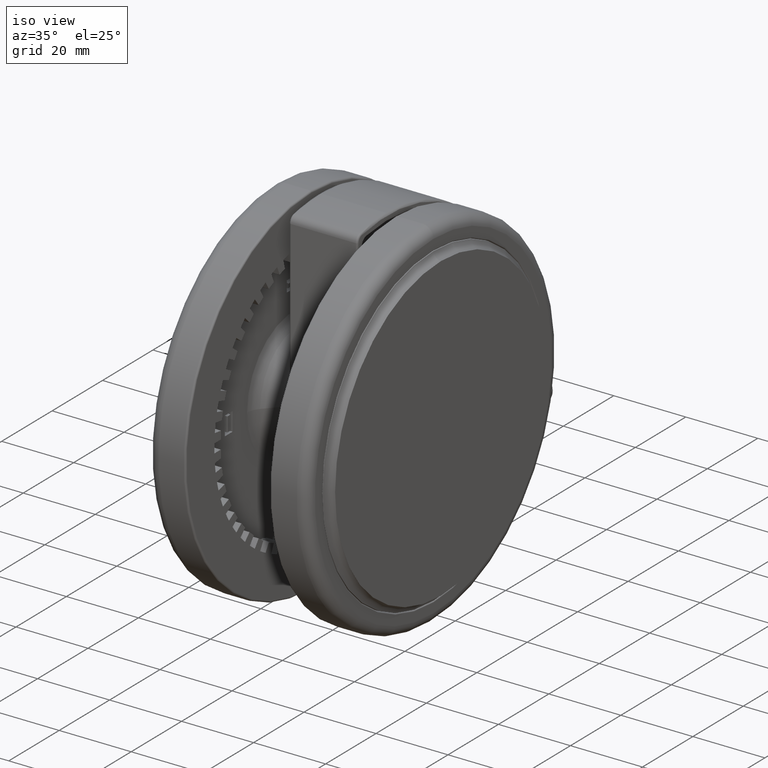
[diagram: clean part render]
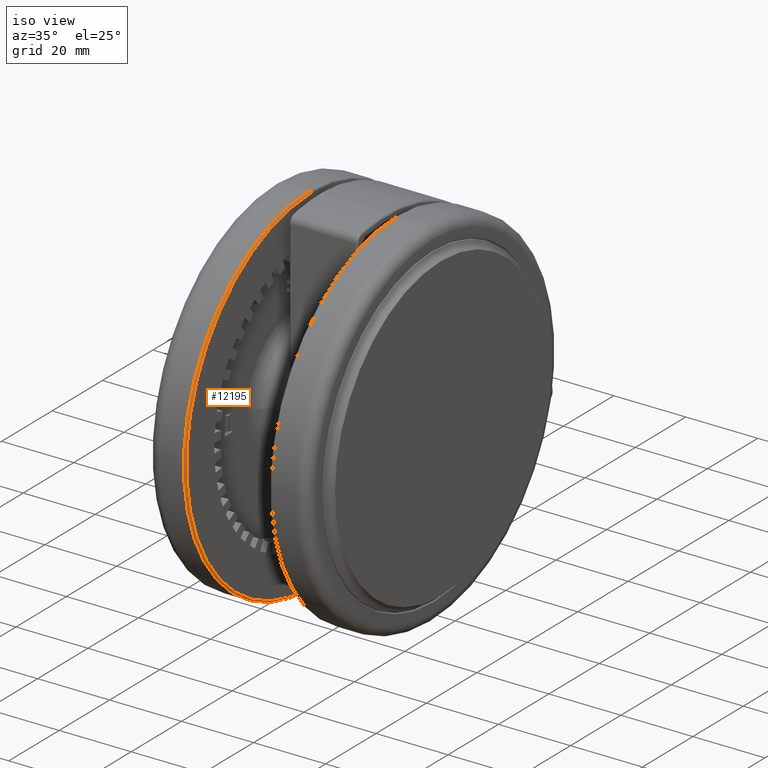
[diagram: same view with one face highlighted and labeled with its STEP entity id]
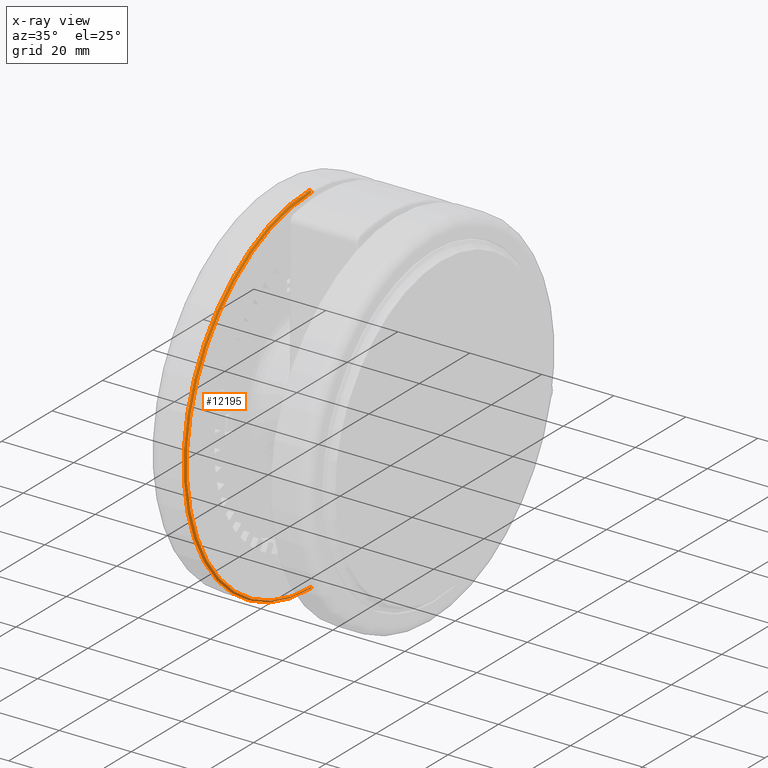
[diagram: x-ray of the same camera — body ghosted, the highlighted face saturated]
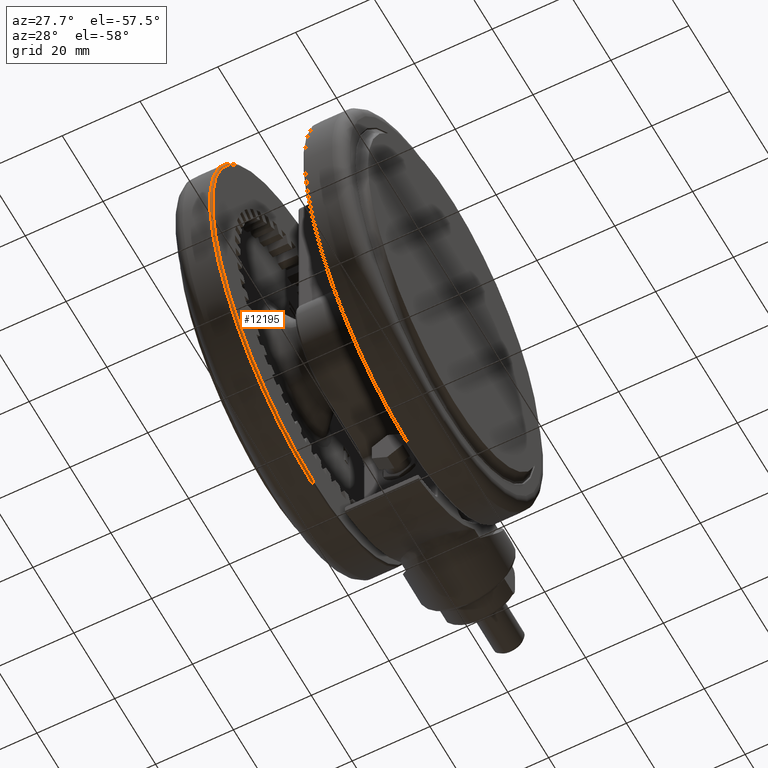
[diagram: same view with one face highlighted and labeled with its STEP entity id]
A machine part, iso view. The second image highlights one B-rep face of the part: STEP entity #12195.
The next image is the same camera in x-ray: the body ghosted, the highlighted face saturated — about 1% of this face is hidden behind the body in this view.
A second angle (auxiliary view) of the same face is appended — the face is thin or edge-on in the first view.
In plain terms, the highlighted toroidal blend (fillet) surface has major radius 49.5 mm and minor (blend) radius 0.5 mm.
Its self-contained STEP definition (entity closure, byte-faithful):
#160 = DIRECTION ( 'NONE',  ( -1.000000000000000000, -4.413456915335259800E-017, -3.081487911019580800E-033 ) ) ;
#1043 = CARTESIAN_POINT ( 'NONE',  ( -50.00000000000002800, -3.089419840734682000E-015, -36.50000000000007800 ) ) ;
#1303 = EDGE_CURVE ( 'NONE', #3012, #26228, #5772, .T. ) ;
#2032 = DIRECTION ( 'NONE',  ( 0.0000000000000000000, 8.826913830670481300E-017, -1.000000000000000000 ) ) ;
#2716 = DIRECTION ( 'NONE',  ( -1.665992490680879200E-016, 1.000000000000000000, 8.826913830670518300E-017 ) ) ;
#3012 = VERTEX_POINT ( 'NONE', #32122 ) ;
#3301 = CARTESIAN_POINT ( 'NONE',  ( 49.99999999999997200, 7.756213054410816500E-015, -36.50000000000007800 ) ) ;
#4066 = CARTESIAN_POINT ( 'NONE',  ( -2.775557561562891400E-014, -8.826913830670517600E-016, -36.50000000000007800 ) ) ;
#5454 = DIRECTION ( 'NONE',  ( 8.142324776845440500E-034, -8.826913830670518300E-017, 1.000000000000000000 ) ) ;
#5746 = FACE_OUTER_BOUND ( 'NONE', #29171, .T. ) ;
#5772 = CIRCLE ( 'NONE', #12741, 49.50000000000000000 ) ;
#5866 = CIRCLE ( 'NONE', #27780, 0.5000000000000004400 ) ;
#6572 = DIRECTION ( 'NONE',  ( -1.000000000000000000, -4.413456915335259800E-017, 0.0000000000000000000 ) ) ;
#9551 = EDGE_CURVE ( 'NONE', #26228, #21359, #5866, .T. ) ;
#9973 = CARTESIAN_POINT ( 'NONE',  ( -2.775557561562891400E-014, -8.826913830670517600E-016, -36.50000000000007800 ) ) ;
#11523 = ORIENTED_EDGE ( 'NONE', *, *, #29039, .F. ) ;
#11632 = TOROIDAL_SURFACE ( 'NONE', #27618, 49.50000000000000000, 0.5000000000000000000 ) ;
#12195 = ADVANCED_FACE ( 'NONE', ( #5746 ), #11632, .T. ) ;
#12224 = ORIENTED_EDGE ( 'NONE', *, *, #28279, .T. ) ;
#12741 = AXIS2_PLACEMENT_3D ( 'NONE', #20430, #5454, #21693 ) ;
#14058 = AXIS2_PLACEMENT_3D ( 'NONE', #4066, #21544, #6572 ) ;
#14532 = CIRCLE ( 'NONE', #14058, 50.00000000000000000 ) ;
#16992 = DIRECTION ( 'NONE',  ( 4.413456915335259200E-017, -1.000000000000000000, -8.826913830670518300E-017 ) ) ;
#17333 = VERTEX_POINT ( 'NONE', #1043 ) ;
#17683 = CARTESIAN_POINT ( 'NONE',  ( 49.49999999999997200, 7.363971445803300400E-015, -36.50000000000007800 ) ) ;
#20196 = DIRECTION ( 'NONE',  ( -1.000000000000000000, -1.665992490680881200E-016, 0.0000000000000000000 ) ) ;
#20430 = CARTESIAN_POINT ( 'NONE',  ( -2.775557561562891400E-014, -9.268259522204044800E-016, -36.00000000000007800 ) ) ;
#21359 = VERTEX_POINT ( 'NONE', #3301 ) ;
#21544 = DIRECTION ( 'NONE',  ( -8.142324776845440500E-034, 8.826913830670518300E-017, -1.000000000000000000 ) ) ;
#21693 = DIRECTION ( 'NONE',  ( -1.000000000000000000, -4.413456915335259200E-017, 0.0000000000000000000 ) ) ;
#23228 = AXIS2_PLACEMENT_3D ( 'NONE', #31940, #16992, #2032 ) ;
#23814 = CARTESIAN_POINT ( 'NONE',  ( 49.49999999999997200, 7.383553973493647100E-015, -36.00000000000007800 ) ) ;
#24581 = ORIENTED_EDGE ( 'NONE', *, *, #9551, .F. ) ;
#25406 = CIRCLE ( 'NONE', #23228, 0.5000000000000004400 ) ;
#26228 = VERTEX_POINT ( 'NONE', #23814 ) ;
#27618 = AXIS2_PLACEMENT_3D ( 'NONE', #9973, #30049, #160 ) ;
#27780 = AXIS2_PLACEMENT_3D ( 'NONE', #17683, #2716, #20196 ) ;
#28279 = EDGE_CURVE ( 'NONE', #3012, #17333, #25406, .T. ) ;
#29039 = EDGE_CURVE ( 'NONE', #21359, #17333, #14532, .T. ) ;
#29171 = EDGE_LOOP ( 'NONE', ( #24581, #29758, #12224, #11523 ) ) ;
#29758 = ORIENTED_EDGE ( 'NONE', *, *, #1303, .F. ) ;
#30049 = DIRECTION ( 'NONE',  ( -8.142324776845440500E-034, 8.826913830670518300E-017, -1.000000000000000000 ) ) ;
#31940 = CARTESIAN_POINT ( 'NONE',  ( -49.50000000000002800, -3.067352556158005200E-015, -36.50000000000007800 ) ) ;
#32122 = CARTESIAN_POINT ( 'NONE',  ( -49.50000000000002800, -3.111487125311357600E-015, -36.00000000000007800 ) ) ;